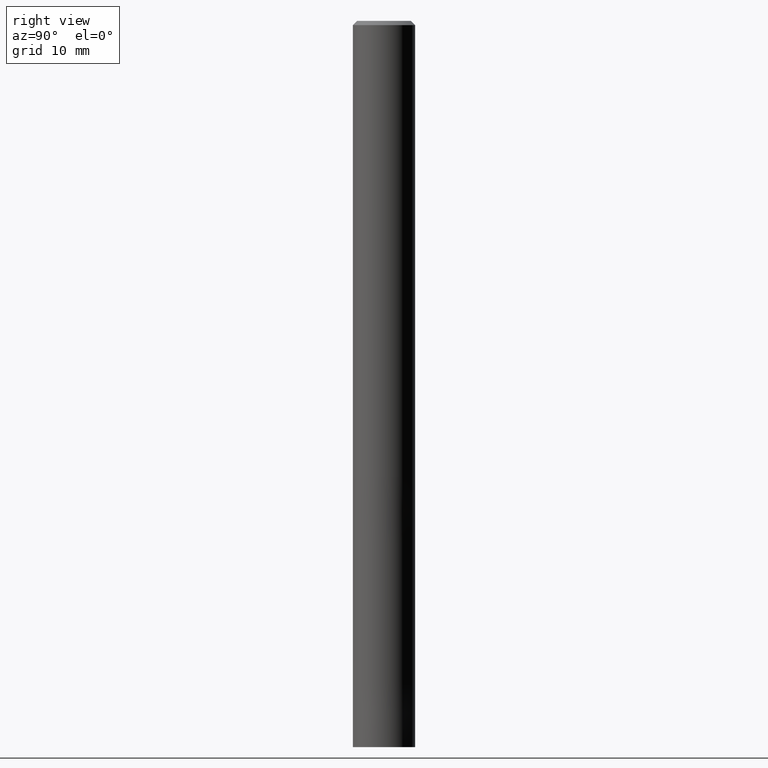
[diagram: clean part render]
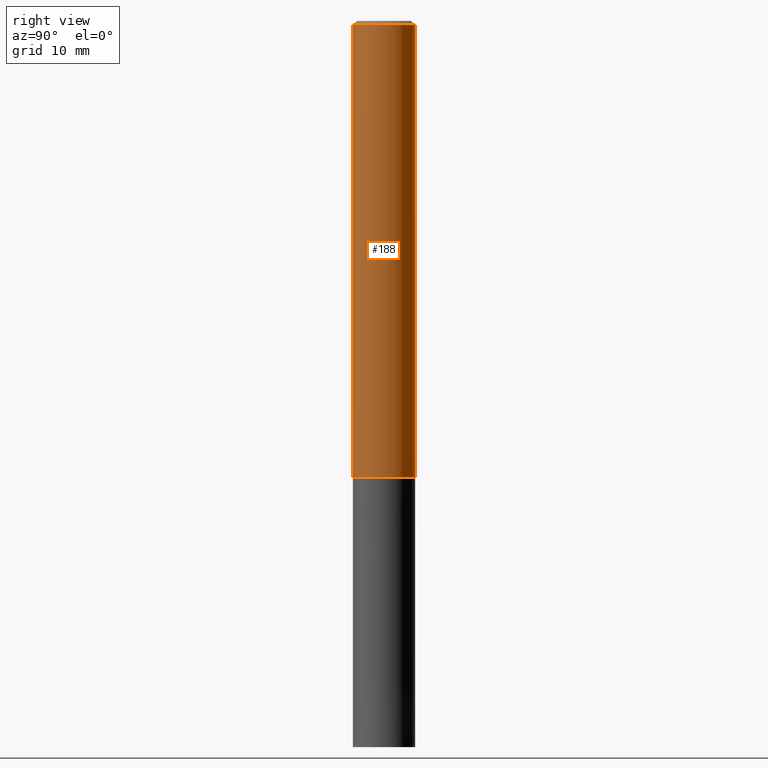
[diagram: same view with one face highlighted and labeled with its STEP entity id]
A machine part, right view. The second image highlights one B-rep face of the part: STEP entity #188.
In plain terms, the highlighted cylindrical surface (edge-blend (fillet) strip) has radius 3 mm, axis along (-0, -0, 1).
Its self-contained STEP definition (entity closure, byte-faithful):
#104=VERTEX_POINT('',#251);
#112=EDGE_CURVE('',#104,#206,#261,.T.);
#118=EDGE_CURVE('',#206,#192,#267,.T.);
#188=ADVANCED_FACE('',(#346),#347,.T.);
#192=VERTEX_POINT('',#351);
#196=VERTEX_POINT('',#356);
#204=EDGE_CURVE('',#104,#196,#364,.T.);
#206=VERTEX_POINT('',#366);
#208=EDGE_CURVE('',#192,#196,#368,.T.);
#251=CARTESIAN_POINT('',(0.0,3.0,-0.399999999999999));
#261=LINE('',#417,#418);
#267=CIRCLE('',#426,3.0);
#346=FACE_OUTER_BOUND('',#530,.T.);
#347=CYLINDRICAL_SURFACE('',#531,3.0);
#351=CARTESIAN_POINT('',(3.67381906146713E-016,-3.0,-44.0));
#356=CARTESIAN_POINT('',(3.67381906146713E-016,-3.0,-0.399999999999999));
#364=CIRCLE('',#552,3.0);
#366=CARTESIAN_POINT('',(0.0,3.0,-44.0));
#368=LINE('',#557,#558);
#417=CARTESIAN_POINT('',(-3.67381906146713E-016,3.0,-22.2));
#418=VECTOR('',#600,1.0);
#426=AXIS2_PLACEMENT_3D('',#604,#605,#606);
#530=EDGE_LOOP('',(#706,#707,#708,#709));
#531=AXIS2_PLACEMENT_3D('',#710,#711,#712);
#552=AXIS2_PLACEMENT_3D('',#728,#729,#730);
#557=CARTESIAN_POINT('',(3.67381906146713E-016,-3.0,-22.2));
#558=VECTOR('',#731,1.0);
#600=DIRECTION('',(0.0,0.0,-1.0));
#604=CARTESIAN_POINT('',(0.0,0.0,-44.0));
#605=DIRECTION('',(0.0,0.0,-1.0));
#606=DIRECTION('',(0.0,1.0,0.0));
#706=ORIENTED_EDGE('',*,*,#112,.F.);
#707=ORIENTED_EDGE('',*,*,#204,.T.);
#708=ORIENTED_EDGE('',*,*,#208,.F.);
#709=ORIENTED_EDGE('',*,*,#118,.F.);
#710=CARTESIAN_POINT('',(0.0,0.0,-22.2));
#711=DIRECTION('',(-0.0,-0.0,1.0));
#712=DIRECTION('',(0.0,1.0,0.0));
#728=CARTESIAN_POINT('',(0.0,0.0,-0.399999999999999));
#729=DIRECTION('',(0.0,0.0,-1.0));
#730=DIRECTION('',(0.0,1.0,0.0));
#731=DIRECTION('',(-0.0,-0.0,1.0));